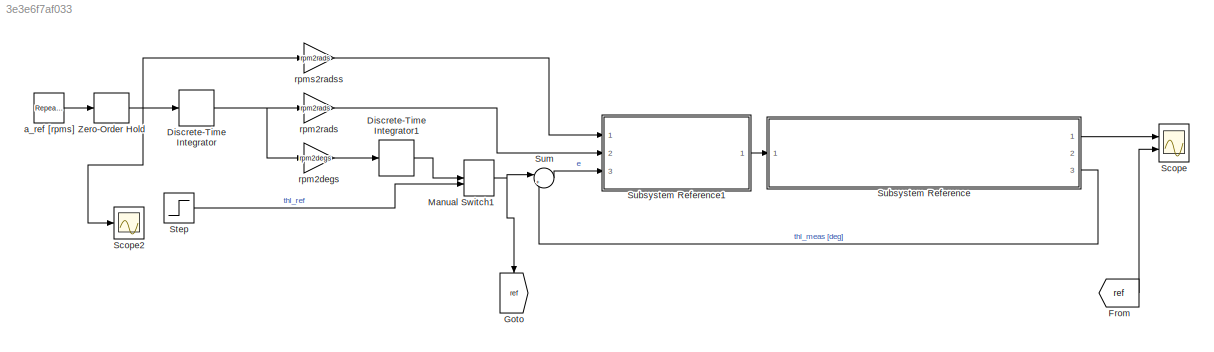
MODEL slx_3e3e6f7af033
KIND model
CONFIG AbsTol = auto
CONFIG EnableMultiTasking = off
CONFIG FixedStep = auto
CONFIG MaxStep = auto
CONFIG MinStep = auto
CONFIG RelTol = 1e-3
CONFIG SampleTimeConstraint = Unconstrained
CONFIG SolverName = ode45
CONFIG StartTime = 0.0
CONFIG StopTime = 5
BLOCK [DiscreteIntegrator] Discrete-Time Integrator
  ICPrevOutput = DiscIntNeverNeededParam
  ICPrevScaledInput = DiscIntNeverNeededParam
  InitialConditionSetting = Auto
  IntegratorMethod = Accumulation: Backward Euler
  Ports = [1, 1]
  SampleTime = Ts
  gainval = Ts
BLOCK [DiscreteIntegrator] Discrete-Time Integrator1
  ICPrevOutput = DiscIntNeverNeededParam
  ICPrevScaledInput = DiscIntNeverNeededParam
  InitialConditionSetting = Auto
  IntegratorMethod = Accumulation: Backward Euler
  Ports = [1, 1]
  SampleTime = Ts
  gainval = Ts
BLOCK [From] From
  GotoTag = ref
BLOCK [Goto] Goto
  GotoTag = ref
  NameLocation = left
BLOCK [ManualSwitch] Manual Switch1
BLOCK [Scope] Scope
  Floating = off
  NumInputPorts = 2
  Ports = [2]
  ScopeSpecificationString = Simulink.scopes.TimeScopeBlockCfg('CurrentConfiguration', extmgr.ConfigurationSet(extmgr.Configuration('Core','General UI',true),extmgr.Configuration('Core','Source UI',true),extmgr.Configuration('Sources','WiredSimulink',true,'DataLogging',true,'DataLoggingVariableName','thl_meas','DataLoggingSaveFormat','StructureWithTime'),extmgr.Configuration('Visuals','Time Domain',true,'SerializedDisplays',{...<+1549ch>
BLOCK [Scope] Scope2
  Floating = off
  NumInputPorts = 1
  Ports = [1]
  ScopeSpecificationString = Simulink.scopes.TimeScopeBlockCfg('CurrentConfiguration', extmgr.ConfigurationSet(extmgr.Configuration('Core','General UI',true),extmgr.Configuration('Core','Source UI',true),extmgr.Configuration('Sources','WiredSimulink',true,'DataLoggingVariableName','ScopeData2'),extmgr.Configuration('Visuals','Time Domain',true,'SerializedDisplays',{struct('MinYLimReal','858.39908','MaxYLimReal','937.56849','Y...<+1461ch>
BLOCK [Step] Step
  After = 360
  SampleTime = 0
  Time = 0
BLOCK [SubSystem] Subsystem Reference
  Ports = [1, 3]
  ReferencedSubsystem = DCServoMotor_SubSystem
  RequestExecContextInheritance = off
BLOCK [SubSystem] Subsystem Reference1
  Ports = [3, 1]
  ReferencedSubsystem = PIDFeedFowardDigital_SubSystem
  RequestExecContextInheritance = off
BLOCK [Sum] Sum
  Inputs = |+-
  Ports = [2, 1]
BLOCK [ZeroOrderHold] Zero-Order Hold
  SampleTime = Ts
BLOCK [Reference] a_ref [rpms]  REF=simulink/Sources/Repeating
Sequence
Stair
  Ports = [0, 1]
  SourceBlock = simulink/Sources/Repeating\nSequence\nStair
  SourceProductBaseCode = SL
  SourceType = Repeating Sequence Stair
BLOCK [Gain] rpm2degs
  Gain = rpm2degs
BLOCK [Gain] rpm2rads
  Gain = rpm2rads
BLOCK [Gain] rpms2radss
  Gain = rpm2rads
LINE Discrete-Time Integrator1:1 -> Manual Switch1:1
NET Discrete-Time Integrator:1 -> rpm2degs:1, rpm2rads:1
LINE From:1 -> Scope:2
NET Manual Switch1:1 -> Goto:1, Sum:1
LINE Step:1 -> Manual Switch1:2
LINE Subsystem Reference1:1 -> Subsystem Reference:1
LINE Subsystem Reference:1 -> Scope:1
LINE Subsystem Reference:3 -> Sum:2
LINE Sum:1 -> Subsystem Reference1:3
NET Zero-Order Hold:1 -> Discrete-Time Integrator:1, Scope2:1, rpms2radss:1
LINE a_ref [rpms]:1 -> Zero-Order Hold:1
LINE rpm2degs:1 -> Discrete-Time Integrator1:1
LINE rpm2rads:1 -> Subsystem Reference1:2
LINE rpms2radss:1 -> Subsystem Reference1:1
note: NET lines group one-source signal fan-out (src -> all destinations, sorted); 1:1 wires keep LINE
